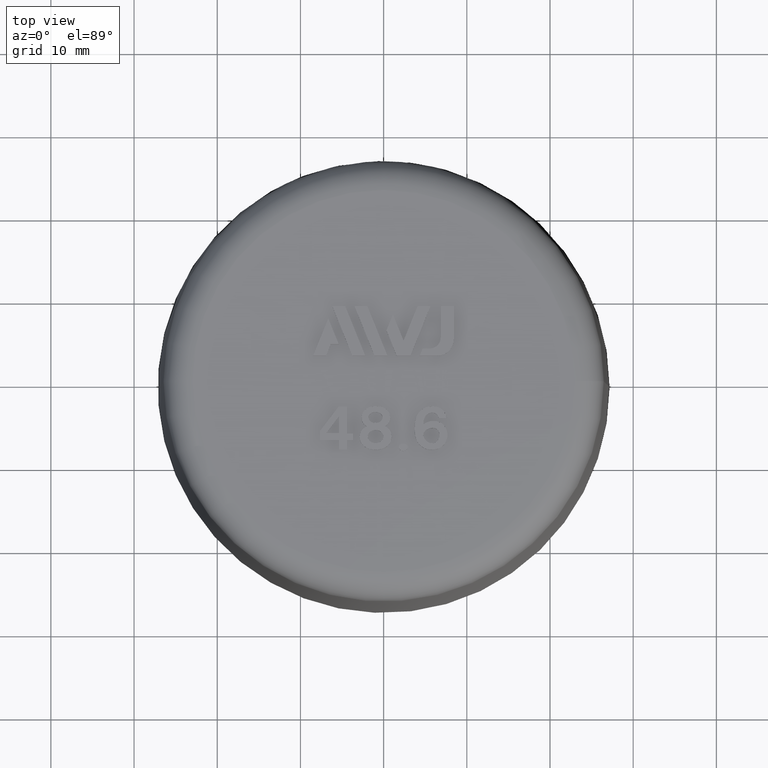
[diagram: clean part render]
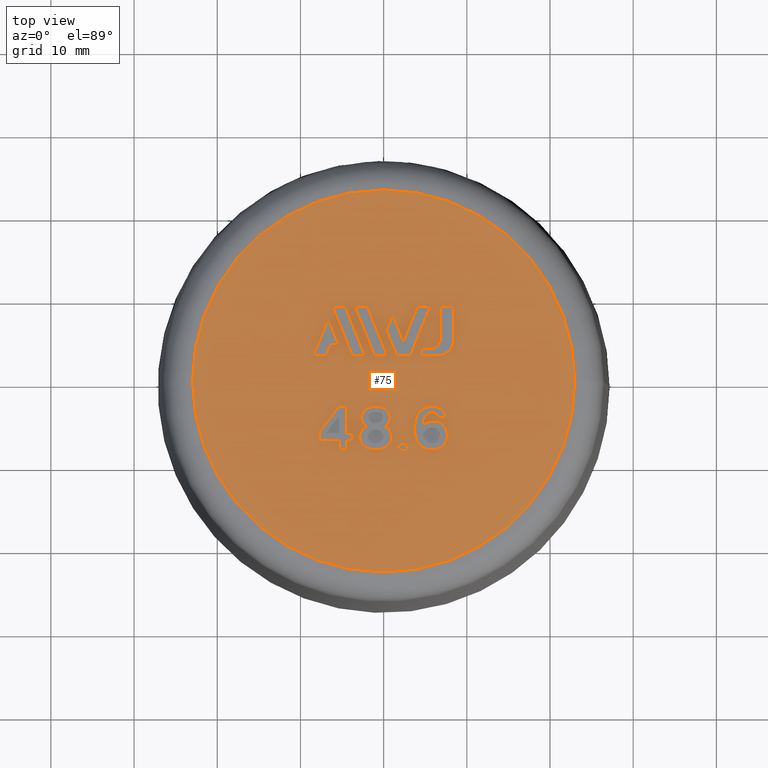
[diagram: same view with one face highlighted and labeled with its STEP entity id]
A machine part, top view. The second image highlights one B-rep face of the part: STEP entity #75.
In plain terms, the highlighted planar face has unit normal (0, 0, -1).
Its self-contained STEP definition (entity closure, byte-faithful):
#75 = ADVANCED_FACE( '', ( #150, #151, #152, #153, #154, #155, #156, #157, #158, #159 ), #160, .F. );
#150 = FACE_BOUND( '', #319, .T. );
#151 = FACE_BOUND( '', #320, .T. );
#152 = FACE_BOUND( '', #321, .T. );
#153 = FACE_BOUND( '', #322, .T. );
#154 = FACE_OUTER_BOUND( '', #323, .T. );
#155 = FACE_BOUND( '', #324, .T. );
#156 = FACE_BOUND( '', #325, .T. );
#157 = FACE_BOUND( '', #326, .T. );
#158 = FACE_BOUND( '', #327, .T. );
#159 = FACE_BOUND( '', #328, .T. );
#160 = PLANE( '', #329 );
#319 = EDGE_LOOP( '', ( #499, #500, #501, #502 ) );
#320 = EDGE_LOOP( '', ( #503, #504, #505, #506, #507, #508, #509 ) );
#321 = EDGE_LOOP( '', ( #510 ) );
#322 = EDGE_LOOP( '', ( #511, #512, #513 ) );
#323 = EDGE_LOOP( '', ( #514 ) );
#324 = EDGE_LOOP( '', ( #515, #516, #517, #518, #519, #520, #521, #522, #523, #524, #525 ) );
#325 = EDGE_LOOP( '', ( #526, #527, #528, #529 ) );
#326 = EDGE_LOOP( '', ( #530, #531, #532, #533, #534, #535, #536, #537 ) );
#327 = EDGE_LOOP( '', ( #538, #539, #540, #541 ) );
#328 = EDGE_LOOP( '', ( #542, #543, #544, #545, #546 ) );
#329 = AXIS2_PLACEMENT_3D( '', #547, #548, #549 );
#499 = ORIENTED_EDGE( '', *, *, #1162, .F. );
#500 = ORIENTED_EDGE( '', *, *, #1163, .F. );
#501 = ORIENTED_EDGE( '', *, *, #1164, .F. );
#502 = ORIENTED_EDGE( '', *, *, #1165, .F. );
#503 = ORIENTED_EDGE( '', *, *, #1166, .F. );
#504 = ORIENTED_EDGE( '', *, *, #1167, .F. );
#505 = ORIENTED_EDGE( '', *, *, #1168, .F. );
#506 = ORIENTED_EDGE( '', *, *, #1169, .F. );
#507 = ORIENTED_EDGE( '', *, *, #1170, .F. );
#508 = ORIENTED_EDGE( '', *, *, #1171, .F. );
#509 = ORIENTED_EDGE( '', *, *, #1172, .F. );
#510 = ORIENTED_EDGE( '', *, *, #1173, .T. );
#511 = ORIENTED_EDGE( '', *, *, #1174, .T. );
#512 = ORIENTED_EDGE( '', *, *, #1175, .T. );
#513 = ORIENTED_EDGE( '', *, *, #1176, .T. );
#514 = ORIENTED_EDGE( '', *, *, #1177, .T. );
#515 = ORIENTED_EDGE( '', *, *, #1178, .T. );
#516 = ORIENTED_EDGE( '', *, *, #1179, .T. );
#517 = ORIENTED_EDGE( '', *, *, #1180, .T. );
#518 = ORIENTED_EDGE( '', *, *, #1181, .T. );
#519 = ORIENTED_EDGE( '', *, *, #1182, .T. );
#520 = ORIENTED_EDGE( '', *, *, #1183, .T. );
#521 = ORIENTED_EDGE( '', *, *, #1184, .T. );
#522 = ORIENTED_EDGE( '', *, *, #1185, .T. );
#523 = ORIENTED_EDGE( '', *, *, #1186, .T. );
#524 = ORIENTED_EDGE( '', *, *, #1187, .T. );
#525 = ORIENTED_EDGE( '', *, *, #1188, .T. );
#526 = ORIENTED_EDGE( '', *, *, #1189, .T. );
#527 = ORIENTED_EDGE( '', *, *, #1190, .T. );
#528 = ORIENTED_EDGE( '', *, *, #1191, .T. );
#529 = ORIENTED_EDGE( '', *, *, #1192, .T. );
#530 = ORIENTED_EDGE( '', *, *, #1193, .F. );
#531 = ORIENTED_EDGE( '', *, *, #1194, .F. );
#532 = ORIENTED_EDGE( '', *, *, #1195, .F. );
#533 = ORIENTED_EDGE( '', *, *, #1196, .F. );
#534 = ORIENTED_EDGE( '', *, *, #1197, .F. );
#535 = ORIENTED_EDGE( '', *, *, #1198, .F. );
#536 = ORIENTED_EDGE( '', *, *, #1199, .F. );
#537 = ORIENTED_EDGE( '', *, *, #1200, .F. );
#538 = ORIENTED_EDGE( '', *, *, #1201, .F. );
#539 = ORIENTED_EDGE( '', *, *, #1202, .F. );
#540 = ORIENTED_EDGE( '', *, *, #1203, .F. );
#541 = ORIENTED_EDGE( '', *, *, #1204, .F. );
#542 = ORIENTED_EDGE( '', *, *, #1205, .F. );
#543 = ORIENTED_EDGE( '', *, *, #1206, .F. );
#544 = ORIENTED_EDGE( '', *, *, #1207, .F. );
#545 = ORIENTED_EDGE( '', *, *, #1208, .F. );
#546 = ORIENTED_EDGE( '', *, *, #1209, .F. );
#547 = CARTESIAN_POINT( '', ( -2.60228850187255E-015, 22.9682014383200, 42.5000000000000 ) );
#548 = DIRECTION( '', ( 6.12303176911189E-017, 0.000000000000000, -1.00000000000000 ) );
#549 = DIRECTION( '', ( -1.00000000000000, 0.000000000000000, -6.12303176911189E-017 ) );
#1162 = EDGE_CURVE( '', #1327, #1328, #1329, .T. );
#1163 = EDGE_CURVE( '', #1330, #1327, #1331, .T. );
#1164 = EDGE_CURVE( '', #1332, #1330, #1333, .T. );
#1165 = EDGE_CURVE( '', #1328, #1332, #1334, .T. );
#1166 = EDGE_CURVE( '', #1335, #1336, #1337, .T. );
#1167 = EDGE_CURVE( '', #1338, #1335, #1339, .T. );
#1168 = EDGE_CURVE( '', #1340, #1338, #1341, .T. );
#1169 = EDGE_CURVE( '', #1342, #1340, #1343, .T. );
#1170 = EDGE_CURVE( '', #1344, #1342, #1345, .T. );
#1171 = EDGE_CURVE( '', #1346, #1344, #1347, .T. );
#1172 = EDGE_CURVE( '', #1336, #1346, #1348, .T. );
#1173 = EDGE_CURVE( '', #1349, #1349, #1350, .T. );
#1174 = EDGE_CURVE( '', #1351, #1352, #1353, .T. );
#1175 = EDGE_CURVE( '', #1352, #1354, #1355, .T. );
#1176 = EDGE_CURVE( '', #1354, #1351, #1356, .T. );
#1177 = EDGE_CURVE( '', #1357, #1357, #1358, .T. );
#1178 = EDGE_CURVE( '', #1359, #1360, #1361, .T. );
#1179 = EDGE_CURVE( '', #1360, #1362, #1363, .T. );
#1180 = EDGE_CURVE( '', #1362, #1364, #1365, .T. );
#1181 = EDGE_CURVE( '', #1364, #1366, #1367, .T. );
#1182 = EDGE_CURVE( '', #1366, #1368, #1369, .T. );
#1183 = EDGE_CURVE( '', #1368, #1370, #1371, .T. );
#1184 = EDGE_CURVE( '', #1370, #1372, #1373, .T. );
#1185 = EDGE_CURVE( '', #1372, #1374, #1375, .T. );
#1186 = EDGE_CURVE( '', #1374, #1376, #1377, .T. );
#1187 = EDGE_CURVE( '', #1376, #1378, #1379, .T. );
#1188 = EDGE_CURVE( '', #1378, #1359, #1380, .T. );
#1189 = EDGE_CURVE( '', #1381, #1382, #1383, .T. );
#1190 = EDGE_CURVE( '', #1382, #1384, #1385, .T. );
#1191 = EDGE_CURVE( '', #1384, #1386, #1387, .T. );
#1192 = EDGE_CURVE( '', #1386, #1381, #1388, .T. );
#1193 = EDGE_CURVE( '', #1389, #1390, #1391, .T. );
#1194 = EDGE_CURVE( '', #1392, #1389, #1393, .T. );
#1195 = EDGE_CURVE( '', #1394, #1392, #1395, .T. );
#1196 = EDGE_CURVE( '', #1396, #1394, #1397, .F. );
#1197 = EDGE_CURVE( '', #1398, #1396, #1399, .T. );
#1198 = EDGE_CURVE( '', #1400, #1398, #1401, .T. );
#1199 = EDGE_CURVE( '', #1402, #1400, #1403, .T. );
#1200 = EDGE_CURVE( '', #1390, #1402, #1404, .T. );
#1201 = EDGE_CURVE( '', #1405, #1406, #1407, .T. );
#1202 = EDGE_CURVE( '', #1408, #1405, #1409, .T. );
#1203 = EDGE_CURVE( '', #1410, #1408, #1411, .T. );
#1204 = EDGE_CURVE( '', #1406, #1410, #1412, .T. );
#1205 = EDGE_CURVE( '', #1413, #1414, #1415, .T. );
#1206 = EDGE_CURVE( '', #1416, #1413, #1417, .T. );
#1207 = EDGE_CURVE( '', #1418, #1416, #1419, .T. );
#1208 = EDGE_CURVE( '', #1420, #1418, #1421, .T. );
#1209 = EDGE_CURVE( '', #1414, #1420, #1422, .T. );
#1327 = VERTEX_POINT( '', #1606 );
#1328 = VERTEX_POINT( '', #1607 );
#1329 = LINE( '', #1608, #1609 );
#1330 = VERTEX_POINT( '', #1610 );
#1331 = LINE( '', #1611, #1612 );
#1332 = VERTEX_POINT( '', #1613 );
#1333 = LINE( '', #1614, #1615 );
#1334 = LINE( '', #1616, #1617 );
#1335 = VERTEX_POINT( '', #1618 );
#1336 = VERTEX_POINT( '', #1619 );
#1337 = LINE( '', #1620, #1621 );
#1338 = VERTEX_POINT( '', #1622 );
#1339 = LINE( '', #1623, #1624 );
#1340 = VERTEX_POINT( '', #1625 );
#1341 = LINE( '', #1626, #1627 );
#1342 = VERTEX_POINT( '', #1628 );
#1343 = LINE( '', #1629, #1630 );
#1344 = VERTEX_POINT( '', #1631 );
#1345 = LINE( '', #1632, #1633 );
#1346 = VERTEX_POINT( '', #1634 );
#1347 = LINE( '', #1635, #1636 );
#1348 = LINE( '', #1637, #1638 );
#1349 = VERTEX_POINT( '', #1639 );
#1350 = B_SPLINE_CURVE_WITH_KNOTS( '', 2, ( #1640, #1641, #1642, #1643, #1644, #1645, #1646, #1647, #1648, #1649, #1650, #1651, #1652, #1653, #1654, #1655, #1656 ), .UNSPECIFIED., .T., .F., ( 3, 2, 2, 2, 2, 2, 2, 2, 3 ), ( 0.000000000000000, 1.00000000000000, 2.00000000000000, 3.00000000000000, 4.00000000000000, 5.00000000000000, 6.00000000000000, 7.00000000000000, 8.00000000000000 ), .UNSPECIFIED. );
#1351 = VERTEX_POINT( '', #1657 );
#1352 = VERTEX_POINT( '', #1658 );
#1353 = B_SPLINE_CURVE_WITH_KNOTS( '', 2, ( #1659, #1660, #1661, #1662, #1663, #1664, #1665, #1666, #1667, #1668, #1669, #1670, #1671, #1672, #1673 ), .UNSPECIFIED., .F., .F., ( 3, 2, 2, 2, 2, 2, 2, 3 ), ( 9.00000000000000, 10.0000000000000, 11.0000000000000, 12.0000000000000, 13.0000000000000, 14.0000000000000, 15.0000000000000, 16.0000000000000 ), .UNSPECIFIED. );
#1354 = VERTEX_POINT( '', #1674 );
#1355 = B_SPLINE_CURVE_WITH_KNOTS( '', 2, ( #1675, #1676, #1677 ), .UNSPECIFIED., .F., .F., ( 3, 3 ), ( 0.000000000000000, 1.00000000000000 ), .UNSPECIFIED. );
#1356 = B_SPLINE_CURVE_WITH_KNOTS( '', 2, ( #1678, #1679, #1680, #1681, #1682, #1683, #1684, #1685, #1686, #1687, #1688, #1689, #1690, #1691, #1692, #1693, #1694 ), .UNSPECIFIED., .F., .F., ( 3, 2, 2, 2, 2, 2, 2, 2, 3 ), ( 1.00000000000000, 2.00000000000000, 3.00000000000000, 4.00000000000000, 5.00000000000000, 6.00000000000000, 7.00000000000000, 8.00000000000000, 9.00000000000000 ), .UNSPECIFIED. );
#1357 = VERTEX_POINT( '', #1695 );
#1358 = CIRCLE( '', #1696, 22.9682014383200 );
#1359 = VERTEX_POINT( '', #1697 );
#1360 = VERTEX_POINT( '', #1698 );
#1361 = B_SPLINE_CURVE_WITH_KNOTS( '', 2, ( #1699, #1700, #1701 ), .UNSPECIFIED., .F., .F., ( 3, 3 ), ( 10.0000000000000, 11.0000000000000 ), .UNSPECIFIED. );
#1362 = VERTEX_POINT( '', #1702 );
#1363 = B_SPLINE_CURVE_WITH_KNOTS( '', 2, ( #1703, #1704, #1705 ), .UNSPECIFIED., .F., .F., ( 3, 3 ), ( 0.000000000000000, 1.00000000000000 ), .UNSPECIFIED. );
#1364 = VERTEX_POINT( '', #1706 );
#1365 = B_SPLINE_CURVE_WITH_KNOTS( '', 2, ( #1707, #1708, #1709 ), .UNSPECIFIED., .F., .F., ( 3, 3 ), ( 1.00000000000000, 2.00000000000000 ), .UNSPECIFIED. );
#1366 = VERTEX_POINT( '', #1710 );
#1367 = B_SPLINE_CURVE_WITH_KNOTS( '', 2, ( #1711, #1712, #1713 ), .UNSPECIFIED., .F., .F., ( 3, 3 ), ( 2.00000000000000, 3.00000000000000 ), .UNSPECIFIED. );
#1368 = VERTEX_POINT( '', #1714 );
#1369 = B_SPLINE_CURVE_WITH_KNOTS( '', 2, ( #1715, #1716, #1717 ), .UNSPECIFIED., .F., .F., ( 3, 3 ), ( 3.00000000000000, 4.00000000000000 ), .UNSPECIFIED. );
#1370 = VERTEX_POINT( '', #1718 );
#1371 = B_SPLINE_CURVE_WITH_KNOTS( '', 2, ( #1719, #1720, #1721 ), .UNSPECIFIED., .F., .F., ( 3, 3 ), ( 4.00000000000000, 5.00000000000000 ), .UNSPECIFIED. );
#1372 = VERTEX_POINT( '', #1722 );
#1373 = B_SPLINE_CURVE_WITH_KNOTS( '', 2, ( #1723, #1724, #1725 ), .UNSPECIFIED., .F., .F., ( 3, 3 ), ( 5.00000000000000, 6.00000000000000 ), .UNSPECIFIED. );
#1374 = VERTEX_POINT( '', #1726 );
#1375 = B_SPLINE_CURVE_WITH_KNOTS( '', 2, ( #1727, #1728, #1729 ), .UNSPECIFIED., .F., .F., ( 3, 3 ), ( 6.00000000000000, 7.00000000000000 ), .UNSPECIFIED. );
#1376 = VERTEX_POINT( '', #1730 );
#1377 = B_SPLINE_CURVE_WITH_KNOTS( '', 2, ( #1731, #1732, #1733 ), .UNSPECIFIED., .F., .F., ( 3, 3 ), ( 7.00000000000000, 8.00000000000000 ), .UNSPECIFIED. );
#1378 = VERTEX_POINT( '', #1734 );
#1379 = B_SPLINE_CURVE_WITH_KNOTS( '', 2, ( #1735, #1736, #1737 ), .UNSPECIFIED., .F., .F., ( 3, 3 ), ( 8.00000000000000, 9.00000000000000 ), .UNSPECIFIED. );
#1380 = B_SPLINE_CURVE_WITH_KNOTS( '', 2, ( #1738, #1739, #1740 ), .UNSPECIFIED., .F., .F., ( 3, 3 ), ( 9.00000000000000, 10.0000000000000 ), .UNSPECIFIED. );
#1381 = VERTEX_POINT( '', #1741 );
#1382 = VERTEX_POINT( '', #1742 );
#1383 = B_SPLINE_CURVE_WITH_KNOTS( '', 2, ( #1743, #1744, #1745, #1746, #1747, #1748, #1749, #1750, #1751, #1752, #1753, #1754, #1755, #1756, #1757, #1758, #1759, #1760, #1761, #1762, #1763, #1764, #1765 ), .UNSPECIFIED., .F., .F., ( 3, 2, 2, 2, 2, 2, 2, 2, 2, 2, 2, 3 ), ( 5.00000000000000, 6.00000000000000, 7.00000000000000, 8.00000000000000, 9.00000000000000, 10.0000000000000, 11.0000000000000, 12.0000000000000, 13.0000000000000, 14.0000000000000, 15.0000000000000, 16.0000000000000 ), .UNSPECIFIED. );
#1384 = VERTEX_POINT( '', #1766 );
#1385 = B_SPLINE_CURVE_WITH_KNOTS( '', 2, ( #1767, #1768, #1769 ), .UNSPECIFIED., .F., .F., ( 3, 3 ), ( 0.000000000000000, 1.00000000000000 ), .UNSPECIFIED. );
#1386 = VERTEX_POINT( '', #1770 );
#1387 = B_SPLINE_CURVE_WITH_KNOTS( '', 2, ( #1771, #1772, #1773 ), .UNSPECIFIED., .F., .F., ( 3, 3 ), ( 1.00000000000000, 2.00000000000000 ), .UNSPECIFIED. );
#1388 = B_SPLINE_CURVE_WITH_KNOTS( '', 2, ( #1774, #1775, #1776, #1777, #1778, #1779, #1780 ), .UNSPECIFIED., .F., .F., ( 3, 2, 2, 3 ), ( 2.00000000000000, 3.00000000000000, 4.00000000000000, 5.00000000000000 ), .UNSPECIFIED. );
#1389 = VERTEX_POINT( '', #1781 );
#1390 = VERTEX_POINT( '', #1782 );
#1391 = LINE( '', #1783, #1784 );
#1392 = VERTEX_POINT( '', #1785 );
#1393 = LINE( '', #1786, #1787 );
#1394 = VERTEX_POINT( '', #1788 );
#1395 = LINE( '', #1789, #1790 );
#1396 = VERTEX_POINT( '', #1791 );
#1397 = CIRCLE( '', #1792, 2.00100000000000 );
#1398 = VERTEX_POINT( '', #1793 );
#1399 = LINE( '', #1794, #1795 );
#1400 = VERTEX_POINT( '', #1796 );
#1401 = LINE( '', #1797, #1798 );
#1402 = VERTEX_POINT( '', #1799 );
#1403 = LINE( '', #1800, #1801 );
#1404 = CIRCLE( '', #1802, 1.33400000000000 );
#1405 = VERTEX_POINT( '', #1803 );
#1406 = VERTEX_POINT( '', #1804 );
#1407 = LINE( '', #1805, #1806 );
#1408 = VERTEX_POINT( '', #1807 );
#1409 = LINE( '', #1808, #1809 );
#1410 = VERTEX_POINT( '', #1810 );
#1411 = LINE( '', #1811, #1812 );
#1412 = LINE( '', #1813, #1814 );
#1413 = VERTEX_POINT( '', #1815 );
#1414 = VERTEX_POINT( '', #1816 );
#1415 = LINE( '', #1817, #1818 );
#1416 = VERTEX_POINT( '', #1819 );
#1417 = LINE( '', #1820, #1821 );
#1418 = VERTEX_POINT( '', #1822 );
#1419 = LINE( '', #1823, #1824 );
#1420 = VERTEX_POINT( '', #1825 );
#1421 = LINE( '', #1826, #1827 );
#1422 = LINE( '', #1828, #1829 );
#1606 = CARTESIAN_POINT( '', ( -2.21126708100000, 3.00305116210031, 42.5000000000000 ) );
#1607 = CARTESIAN_POINT( '', ( -4.63512173600000, 9.00165963410032, 42.5000000000000 ) );
#1608 = CARTESIAN_POINT( '', ( -8.83591610363880, 19.3978773408291, 42.5000000000000 ) );
#1609 = VECTOR( '', #2315, 1000.00000000000 );
#1610 = CARTESIAN_POINT( '', ( -3.76123767900001, 3.00305116210031, 42.5000000000000 ) );
#1611 = CARTESIAN_POINT( '', ( -3.82476099603641E-015, 3.00305116210031, 42.5000000000000 ) );
#1612 = VECTOR( '', #2316, 1000.00000000000 );
#1613 = CARTESIAN_POINT( '', ( -6.18475149700001, 9.00165963410033, 42.5000000000000 ) );
#1614 = CARTESIAN_POINT( '', ( -10.1677652667415, 18.8602954569328, 42.5000000000000 ) );
#1615 = VECTOR( '', #2317, 1000.00000000000 );
#1616 = CARTESIAN_POINT( '', ( -3.45746429359121E-015, 9.00165963410032, 42.5000000000000 ) );
#1617 = VECTOR( '', #2318, 1000.00000000000 );
#1618 = CARTESIAN_POINT( '', ( 5.63160639600000, 9.00165963410032, 42.5000000000000 ) );
#1619 = CARTESIAN_POINT( '', ( 4.08150506599999, 9.00165963410032, 42.5000000000000 ) );
#1620 = CARTESIAN_POINT( '', ( -3.53734127103815E-015, 9.00165963410032, 42.5000000000000 ) );
#1621 = VECTOR( '', #2319, 1000.00000000000 );
#1622 = CARTESIAN_POINT( '', ( 3.20813259799999, 3.00305116210031, 42.5000000000000 ) );
#1623 = CARTESIAN_POINT( '', ( 9.69220340787425, 19.0524931347176, 42.5000000000000 ) );
#1624 = VECTOR( '', #2320, 1000.00000000000 );
#1625 = CARTESIAN_POINT( '', ( 1.56953170700000, 3.00305116210032, 42.5000000000000 ) );
#1626 = CARTESIAN_POINT( '', ( -2.83065653752423E-015, 3.00305116210032, 42.5000000000000 ) );
#1627 = VECTOR( '', #2321, 1000.00000000000 );
#1628 = CARTESIAN_POINT( '', ( 0.334562531000002, 6.05917379310034, 42.5000000000000 ) );
#1629 = CARTESIAN_POINT( '', ( -5.58613675653919, 20.7108618154694, 42.5000000000000 ) );
#1630 = VECTOR( '', #2322, 1000.00000000000 );
#1631 = CARTESIAN_POINT( '', ( 1.10961319600000, 7.97782730710033, 42.5000000000000 ) );
#1632 = CARTESIAN_POINT( '', ( 6.15988679553422, 20.4798812062577, 42.5000000000000 ) );
#1633 = VECTOR( '', #2323, 1000.00000000000 );
#1634 = CARTESIAN_POINT( '', ( 2.38866173400000, 4.81221729310032, 42.5000000000000 ) );
#1635 = CARTESIAN_POINT( '', ( -4.25287871063470, 21.2498475434714, 42.5000000000000 ) );
#1636 = VECTOR( '', #2324, 1000.00000000000 );
#1637 = CARTESIAN_POINT( '', ( 8.36002872533492, 19.5901339698861, 42.5000000000000 ) );
#1638 = VECTOR( '', #2325, 1000.00000000000 );
#1639 = CARTESIAN_POINT( '', ( 2.35500000000000, -7.53474791239786, 42.5000000000000 ) );
#1640 = CARTESIAN_POINT( '', ( 2.35500000000000, -7.53474791239786, 42.5000000000000 ) );
#1641 = CARTESIAN_POINT( '', ( 2.56500000000000, -7.53474791239786, 42.5000000000000 ) );
#1642 = CARTESIAN_POINT( '', ( 2.74500000000000, -7.68474791239786, 42.5000000000000 ) );
#1643 = CARTESIAN_POINT( '', ( 2.89500000000000, -7.80974791239786, 42.5000000000000 ) );
#1644 = CARTESIAN_POINT( '', ( 2.89500000000000, -7.98474791239786, 42.5000000000000 ) );
#1645 = CARTESIAN_POINT( '', ( 2.89500000000000, -8.15974791239786, 42.5000000000000 ) );
#1646 = CARTESIAN_POINT( '', ( 2.74500000000000, -8.28474791239786, 42.5000000000000 ) );
#1647 = CARTESIAN_POINT( '', ( 2.56500000000000, -8.43474791239786, 42.5000000000000 ) );
#1648 = CARTESIAN_POINT( '', ( 2.35500000000000, -8.43474791239786, 42.5000000000000 ) );
#1649 = CARTESIAN_POINT( '', ( 2.14500000000000, -8.43474791239786, 42.5000000000000 ) );
#1650 = CARTESIAN_POINT( '', ( 1.96500000000000, -8.28474791239786, 42.5000000000000 ) );
#1651 = CARTESIAN_POINT( '', ( 1.81500000000000, -8.15974791239786, 42.5000000000000 ) );
#1652 = CARTESIAN_POINT( '', ( 1.81500000000000, -7.98474791239786, 42.5000000000000 ) );
#1653 = CARTESIAN_POINT( '', ( 1.81500000000000, -7.80974791239786, 42.5000000000000 ) );
#1654 = CARTESIAN_POINT( '', ( 1.96500000000000, -7.68474791239786, 42.5000000000000 ) );
#1655 = CARTESIAN_POINT( '', ( 2.14500000000000, -7.53474791239786, 42.5000000000000 ) );
#1656 = CARTESIAN_POINT( '', ( 2.35500000000000, -7.53474791239786, 42.5000000000000 ) );
#1657 = CARTESIAN_POINT( '', ( 0.134999999999997, -5.45974791239786, 42.5000000000000 ) );
#1658 = CARTESIAN_POINT( '', ( -2.74004667555725, -6.13718647212352, 42.5000000000000 ) );
#1659 = CARTESIAN_POINT( '', ( 0.134999999999997, -5.45974791239786, 42.5000000000000 ) );
#1660 = CARTESIAN_POINT( '', ( 0.584999999999996, -5.63474791239786, 42.5000000000000 ) );
#1661 = CARTESIAN_POINT( '', ( 0.808053582956744, -6.06846321259153, 42.5000000000000 ) );
#1662 = CARTESIAN_POINT( '', ( 1.03500000000000, -6.50974791239786, 42.5000000000000 ) );
#1663 = CARTESIAN_POINT( '', ( 0.929423076923073, -7.03763252778248, 42.5000000000000 ) );
#1664 = CARTESIAN_POINT( '', ( 0.824999999999997, -7.55974791239786, 42.5000000000000 ) );
#1665 = CARTESIAN_POINT( '', ( 0.381587202007525, -7.89349948077929, 42.5000000000000 ) );
#1666 = CARTESIAN_POINT( '', ( -0.105000000000004, -8.25974791239786, 42.5000000000000 ) );
#1667 = CARTESIAN_POINT( '', ( -0.825061573827022, -8.28282680899488, 42.5000000000000 ) );
#1668 = CARTESIAN_POINT( '', ( -1.66500000000000, -8.30974791239786, 42.5000000000000 ) );
#1669 = CARTESIAN_POINT( '', ( -2.20161603248609, -7.95463436148795, 42.5000000000000 ) );
#1670 = CARTESIAN_POINT( '', ( -2.68500000000000, -7.63474791239786, 42.5000000000000 ) );
#1671 = CARTESIAN_POINT( '', ( -2.82811926605505, -7.15768369221437, 42.5000000000000 ) );
#1672 = CARTESIAN_POINT( '', ( -2.98500000000000, -6.63474791239786, 42.5000000000000 ) );
#1673 = CARTESIAN_POINT( '', ( -2.74004667555725, -6.13718647212352, 42.5000000000000 ) );
#1674 = CARTESIAN_POINT( '', ( -1.99500000000000, -5.48474791239786, 42.5000000000000 ) );
#1675 = CARTESIAN_POINT( '', ( -2.74004667555725, -6.13718647212352, 42.5000000000000 ) );
#1676 = CARTESIAN_POINT( '', ( -2.50500000000000, -5.65974791239786, 42.5000000000000 ) );
#1677 = CARTESIAN_POINT( '', ( -1.99500000000000, -5.48474791239786, 42.5000000000000 ) );
#1678 = CARTESIAN_POINT( '', ( -1.99500000000000, -5.48474791239786, 42.5000000000000 ) );
#1679 = CARTESIAN_POINT( '', ( -2.38500000000000, -5.28474791239786, 42.5000000000000 ) );
#1680 = CARTESIAN_POINT( '', ( -2.56022407477148, -4.90752941809816, 42.5000000000000 ) );
#1681 = CARTESIAN_POINT( '', ( -2.74500000000000, -4.50974791239786, 42.5000000000000 ) );
#1682 = CARTESIAN_POINT( '', ( -2.57977181292432, -3.98958510123367, 42.5000000000000 ) );
#1683 = CARTESIAN_POINT( '', ( -2.47500000000000, -3.65974791239786, 42.5000000000000 ) );
#1684 = CARTESIAN_POINT( '', ( -2.17500000000000, -3.40974791239786, 42.5000000000000 ) );
#1685 = CARTESIAN_POINT( '', ( -1.75500000000000, -3.05974791239786, 42.5000000000000 ) );
#1686 = CARTESIAN_POINT( '', ( -0.945000000000003, -3.05974791239786, 42.5000000000000 ) );
#1687 = CARTESIAN_POINT( '', ( -0.135000000000004, -3.05974791239786, 42.5000000000000 ) );
#1688 = CARTESIAN_POINT( '', ( 0.284999999999996, -3.40974791239786, 42.5000000000000 ) );
#1689 = CARTESIAN_POINT( '', ( 0.674999999999996, -3.73474791239786, 42.5000000000000 ) );
#1690 = CARTESIAN_POINT( '', ( 0.767603344903753, -4.15917990987341, 42.5000000000000 ) );
#1691 = CARTESIAN_POINT( '', ( 0.854999999999997, -4.55974791239786, 42.5000000000000 ) );
#1692 = CARTESIAN_POINT( '', ( 0.677629821339118, -4.93598768531488, 42.5000000000000 ) );
#1693 = CARTESIAN_POINT( '', ( 0.524999999999997, -5.25974791239786, 42.5000000000000 ) );
#1694 = CARTESIAN_POINT( '', ( 0.134999999999997, -5.45974791239786, 42.5000000000000 ) );
#1695 = CARTESIAN_POINT( '', ( 22.9682014383200, 0.000000000000000, 42.5000000000000 ) );
#1696 = AXIS2_PLACEMENT_3D( '', #2326, #2327, #2328 );
#1697 = CARTESIAN_POINT( '', ( -5.35500000000000, -7.13474791239786, 42.5000000000000 ) );
#1698 = CARTESIAN_POINT( '', ( -7.66500000000000, -7.13474791239786, 42.5000000000000 ) );
#1699 = CARTESIAN_POINT( '', ( -5.35500000000000, -7.13474791239786, 42.5000000000000 ) );
#1700 = CARTESIAN_POINT( '', ( -6.51000000000000, -7.13474791239786, 42.5000000000000 ) );
#1701 = CARTESIAN_POINT( '', ( -7.66500000000000, -7.13474791239786, 42.5000000000000 ) );
#1702 = CARTESIAN_POINT( '', ( -7.66500000000000, -6.05974791239786, 42.5000000000000 ) );
#1703 = CARTESIAN_POINT( '', ( -7.66500000000000, -7.13474791239786, 42.5000000000000 ) );
#1704 = CARTESIAN_POINT( '', ( -7.66500000000000, -6.59724791239786, 42.5000000000000 ) );
#1705 = CARTESIAN_POINT( '', ( -7.66500000000000, -6.05974791239786, 42.5000000000000 ) );
#1706 = CARTESIAN_POINT( '', ( -5.41500000000000, -3.10974791239786, 42.5000000000000 ) );
#1707 = CARTESIAN_POINT( '', ( -7.66500000000000, -6.05974791239786, 42.5000000000000 ) );
#1708 = CARTESIAN_POINT( '', ( -6.54000000000000, -4.58474791239786, 42.5000000000000 ) );
#1709 = CARTESIAN_POINT( '', ( -5.41500000000000, -3.10974791239786, 42.5000000000000 ) );
#1710 = CARTESIAN_POINT( '', ( -4.39500000000000, -3.10974791239786, 42.5000000000000 ) );
#1711 = CARTESIAN_POINT( '', ( -5.41500000000000, -3.10974791239786, 42.5000000000000 ) );
#1712 = CARTESIAN_POINT( '', ( -4.90500000000000, -3.10974791239786, 42.5000000000000 ) );
#1713 = CARTESIAN_POINT( '', ( -4.39500000000000, -3.10974791239786, 42.5000000000000 ) );
#1714 = CARTESIAN_POINT( '', ( -4.39500000000000, -6.33474791239786, 42.5000000000000 ) );
#1715 = CARTESIAN_POINT( '', ( -4.39500000000000, -3.10974791239786, 42.5000000000000 ) );
#1716 = CARTESIAN_POINT( '', ( -4.39500000000000, -4.72224791239786, 42.5000000000000 ) );
#1717 = CARTESIAN_POINT( '', ( -4.39500000000000, -6.33474791239786, 42.5000000000000 ) );
#1718 = CARTESIAN_POINT( '', ( -3.70500000000000, -6.33474791239786, 42.5000000000000 ) );
#1719 = CARTESIAN_POINT( '', ( -4.39500000000000, -6.33474791239786, 42.5000000000000 ) );
#1720 = CARTESIAN_POINT( '', ( -4.05000000000000, -6.33474791239786, 42.5000000000000 ) );
#1721 = CARTESIAN_POINT( '', ( -3.70500000000000, -6.33474791239786, 42.5000000000000 ) );
#1722 = CARTESIAN_POINT( '', ( -3.70500000000000, -7.13474791239786, 42.5000000000000 ) );
#1723 = CARTESIAN_POINT( '', ( -3.70500000000000, -6.33474791239786, 42.5000000000000 ) );
#1724 = CARTESIAN_POINT( '', ( -3.70500000000000, -6.73474791239786, 42.5000000000000 ) );
#1725 = CARTESIAN_POINT( '', ( -3.70500000000000, -7.13474791239786, 42.5000000000000 ) );
#1726 = CARTESIAN_POINT( '', ( -4.39500000000000, -7.13474791239786, 42.5000000000000 ) );
#1727 = CARTESIAN_POINT( '', ( -3.70500000000000, -7.13474791239786, 42.5000000000000 ) );
#1728 = CARTESIAN_POINT( '', ( -4.05000000000000, -7.13474791239786, 42.5000000000000 ) );
#1729 = CARTESIAN_POINT( '', ( -4.39500000000000, -7.13474791239786, 42.5000000000000 ) );
#1730 = CARTESIAN_POINT( '', ( -4.39500000000000, -8.25974791239786, 42.5000000000000 ) );
#1731 = CARTESIAN_POINT( '', ( -4.39500000000000, -7.13474791239786, 42.5000000000000 ) );
#1732 = CARTESIAN_POINT( '', ( -4.39500000000000, -7.69724791239786, 42.5000000000000 ) );
#1733 = CARTESIAN_POINT( '', ( -4.39500000000000, -8.25974791239786, 42.5000000000000 ) );
#1734 = CARTESIAN_POINT( '', ( -5.35500000000000, -8.25974791239786, 42.5000000000000 ) );
#1735 = CARTESIAN_POINT( '', ( -4.39500000000000, -8.25974791239786, 42.5000000000000 ) );
#1736 = CARTESIAN_POINT( '', ( -4.87500000000000, -8.25974791239786, 42.5000000000000 ) );
#1737 = CARTESIAN_POINT( '', ( -5.35500000000000, -8.25974791239786, 42.5000000000000 ) );
#1738 = CARTESIAN_POINT( '', ( -5.35500000000000, -8.25974791239786, 42.5000000000000 ) );
#1739 = CARTESIAN_POINT( '', ( -5.35500000000000, -7.69724791239786, 42.5000000000000 ) );
#1740 = CARTESIAN_POINT( '', ( -5.35500000000000, -7.13474791239786, 42.5000000000000 ) );
#1741 = CARTESIAN_POINT( '', ( 4.75500000000000, -5.25974791239786, 42.5000000000000 ) );
#1742 = CARTESIAN_POINT( '', ( 6.91875719048524, -3.37977287396224, 42.5000000000000 ) );
#1743 = CARTESIAN_POINT( '', ( 4.75500000000000, -5.25974791239786, 42.5000000000000 ) );
#1744 = CARTESIAN_POINT( '', ( 5.83500000000000, -4.48474791239786, 42.5000000000000 ) );
#1745 = CARTESIAN_POINT( '', ( 6.87600289192759, -5.05128009848091, 42.5000000000000 ) );
#1746 = CARTESIAN_POINT( '', ( 7.30500000000000, -5.28474791239786, 42.5000000000000 ) );
#1747 = CARTESIAN_POINT( '', ( 7.51649630325079, -5.78411418396223, 42.5000000000000 ) );
#1748 = CARTESIAN_POINT( '', ( 7.66500000000000, -6.13474791239786, 42.5000000000000 ) );
#1749 = CARTESIAN_POINT( '', ( 7.66500000000000, -6.60974791239786, 42.5000000000000 ) );
#1750 = CARTESIAN_POINT( '', ( 7.66500000000000, -7.18474791239786, 42.5000000000000 ) );
#1751 = CARTESIAN_POINT( '', ( 7.27448891182025, -7.65932735983853, 42.5000000000000 ) );
#1752 = CARTESIAN_POINT( '', ( 6.94500000000000, -8.05974791239786, 42.5000000000000 ) );
#1753 = CARTESIAN_POINT( '', ( 6.40405378083299, -8.20625418008892, 42.5000000000000 ) );
#1754 = CARTESIAN_POINT( '', ( 5.74500000000000, -8.38474791239786, 42.5000000000000 ) );
#1755 = CARTESIAN_POINT( '', ( 5.11800000000000, -8.17574791239786, 42.5000000000000 ) );
#1756 = CARTESIAN_POINT( '', ( 4.39500000000000, -7.93474791239786, 42.5000000000000 ) );
#1757 = CARTESIAN_POINT( '', ( 4.03546970408642, -7.30947783254817, 42.5000000000000 ) );
#1758 = CARTESIAN_POINT( '', ( 3.70500000000000, -6.73474791239786, 42.5000000000000 ) );
#1759 = CARTESIAN_POINT( '', ( 3.72000291992905, -5.65953865081547, 42.5000000000000 ) );
#1760 = CARTESIAN_POINT( '', ( 3.73500000000000, -4.58474791239786, 42.5000000000000 ) );
#1761 = CARTESIAN_POINT( '', ( 4.10768005758763, -3.99273011258417, 42.5000000000000 ) );
#1762 = CARTESIAN_POINT( '', ( 4.69500000000000, -3.05974791239786, 42.5000000000000 ) );
#1763 = CARTESIAN_POINT( '', ( 5.86500000000000, -3.05974791239786, 42.5000000000000 ) );
#1764 = CARTESIAN_POINT( '', ( 6.49500000000000, -3.05974791239786, 42.5000000000000 ) );
#1765 = CARTESIAN_POINT( '', ( 6.91875719048524, -3.37977287396224, 42.5000000000000 ) );
#1766 = CARTESIAN_POINT( '', ( 7.57500000000000, -4.45974791239786, 42.5000000000000 ) );
#1767 = CARTESIAN_POINT( '', ( 6.91875719048524, -3.37977287396224, 42.5000000000000 ) );
#1768 = CARTESIAN_POINT( '', ( 7.45500000000000, -3.78474791239786, 42.5000000000000 ) );
#1769 = CARTESIAN_POINT( '', ( 7.57500000000000, -4.45974791239786, 42.5000000000000 ) );
#1770 = CARTESIAN_POINT( '', ( 6.61500000000000, -4.45974791239786, 42.5000000000000 ) );
#1771 = CARTESIAN_POINT( '', ( 7.57500000000000, -4.45974791239786, 42.5000000000000 ) );
#1772 = CARTESIAN_POINT( '', ( 7.09500000000000, -4.45974791239786, 42.5000000000000 ) );
#1773 = CARTESIAN_POINT( '', ( 6.61500000000000, -4.45974791239786, 42.5000000000000 ) );
#1774 = CARTESIAN_POINT( '', ( 6.61500000000000, -4.45974791239786, 42.5000000000000 ) );
#1775 = CARTESIAN_POINT( '', ( 6.46500000000000, -3.83474791239786, 42.5000000000000 ) );
#1776 = CARTESIAN_POINT( '', ( 5.83500000000000, -3.83474791239786, 42.5000000000000 ) );
#1777 = CARTESIAN_POINT( '', ( 5.35500000000000, -3.83474791239786, 42.5000000000000 ) );
#1778 = CARTESIAN_POINT( '', ( 5.02560507482108, -4.26021635742063, 42.5000000000000 ) );
#1779 = CARTESIAN_POINT( '', ( 4.75500000000000, -4.60974791239786, 42.5000000000000 ) );
#1780 = CARTESIAN_POINT( '', ( 4.75500000000000, -5.25974791239786, 42.5000000000000 ) );
#1781 = CARTESIAN_POINT( '', ( 6.86196526799999, 9.00165963410032, 42.5000000000000 ) );
#1782 = CARTESIAN_POINT( '', ( 6.86196526800000, 5.20936243310032, 42.5000000000000 ) );
#1783 = CARTESIAN_POINT( '', ( 6.86196526799999, 22.9682014383200, 42.5000000000000 ) );
#1784 = VECTOR( '', #2329, 1000.00000000000 );
#1785 = CARTESIAN_POINT( '', ( 8.42964605000000, 9.00165963410032, 42.5000000000000 ) );
#1786 = CARTESIAN_POINT( '', ( -3.53734127103815E-015, 9.00165963410032, 42.5000000000000 ) );
#1787 = VECTOR( '', #2330, 1000.00000000000 );
#1788 = CARTESIAN_POINT( '', ( 8.42964605000000, 5.00405116210032, 42.5000000000000 ) );
#1789 = CARTESIAN_POINT( '', ( 8.42964605000000, 22.9682014383200, 42.5000000000000 ) );
#1790 = VECTOR( '', #2331, 1000.00000000000 );
#1791 = CARTESIAN_POINT( '', ( 6.42864605000000, 3.00305116210031, 42.5000000000000 ) );
#1792 = AXIS2_PLACEMENT_3D( '', #2332, #2333, #2334 );
#1793 = CARTESIAN_POINT( '', ( 4.32347198900000, 3.00305116210031, 42.5000000000000 ) );
#1794 = CARTESIAN_POINT( '', ( -3.93894501386225E-015, 3.00305116210031, 42.5000000000000 ) );
#1795 = VECTOR( '', #2335, 1000.00000000000 );
#1796 = CARTESIAN_POINT( '', ( 4.67590811900000, 3.87536243310032, 42.5000000000000 ) );
#1797 = CARTESIAN_POINT( '', ( 10.6512325082501, 18.6648302797261, 42.5000000000000 ) );
#1798 = VECTOR( '', #2336, 1000.00000000000 );
#1799 = CARTESIAN_POINT( '', ( 5.52796526800000, 3.87536243310033, 42.5000000000000 ) );
#1800 = CARTESIAN_POINT( '', ( -3.88054422424971E-015, 3.87536243310033, 42.5000000000000 ) );
#1801 = VECTOR( '', #2337, 1000.00000000000 );
#1802 = AXIS2_PLACEMENT_3D( '', #2338, #2339, #2340 );
#1803 = CARTESIAN_POINT( '', ( 0.454192983000000, 3.00305116210031, 42.5000000000000 ) );
#1804 = CARTESIAN_POINT( '', ( -1.96966167200000, 9.00165963410032, 42.5000000000000 ) );
#1805 = CARTESIAN_POINT( '', ( -6.54456918099979, 20.3237407190747, 42.5000000000000 ) );
#1806 = VECTOR( '', #2341, 1000.00000000000 );
#1807 = CARTESIAN_POINT( '', ( -1.09588833700001, 3.00305116210031, 42.5000000000000 ) );
#1808 = CARTESIAN_POINT( '', ( -3.82476099603641E-015, 3.00305116210031, 42.5000000000000 ) );
#1809 = VECTOR( '', #2342, 1000.00000000000 );
#1810 = CARTESIAN_POINT( '', ( -3.51974232500000, 9.00165963410032, 42.5000000000000 ) );
#1811 = CARTESIAN_POINT( '', ( -7.87708608700729, 19.7853121707619, 42.5000000000000 ) );
#1812 = VECTOR( '', #2343, 1000.00000000000 );
#1813 = CARTESIAN_POINT( '', ( -3.45746429359121E-015, 9.00165963410032, 42.5000000000000 ) );
#1814 = VECTOR( '', #2344, 1000.00000000000 );
#1815 = CARTESIAN_POINT( '', ( -8.47575576000001, 3.00305116210031, 42.5000000000000 ) );
#1816 = CARTESIAN_POINT( '', ( -6.92612599899999, 3.00305116210031, 42.5000000000000 ) );
#1817 = CARTESIAN_POINT( '', ( -3.93894501386225E-015, 3.00305116210031, 42.5000000000000 ) );
#1818 = VECTOR( '', #2345, 1000.00000000000 );
#1819 = CARTESIAN_POINT( '', ( -6.65884242400001, 7.50064950410032, 42.5000000000000 ) );
#1820 = CARTESIAN_POINT( '', ( -0.352779799019903, 23.1107153474712, 42.5000000000000 ) );
#1821 = VECTOR( '', #2346, 1000.00000000000 );
#1822 = CARTESIAN_POINT( '', ( -5.40203366700000, 4.38850087410032, 42.5000000000000 ) );
#1823 = CARTESIAN_POINT( '', ( -11.0956949967301, 18.4873207687834, 42.5000000000000 ) );
#1824 = VECTOR( '', #2347, 1000.00000000000 );
#1825 = CARTESIAN_POINT( '', ( -6.36596072299999, 4.38850087410032, 42.5000000000000 ) );
#1826 = CARTESIAN_POINT( '', ( -2.81480930247484E-015, 4.38850087410032, 42.5000000000000 ) );
#1827 = VECTOR( '', #2348, 1000.00000000000 );
#1828 = CARTESIAN_POINT( '', ( 0.985141348665318, 22.5698889115683, 42.5000000000000 ) );
#1829 = VECTOR( '', #2349, 1000.00000000000 );
#2315 = DIRECTION( '', ( -0.374641075834904, 0.927169922019295, -2.29393920935137E-017 ) );
#2316 = DIRECTION( '', ( 1.00000000000000, -6.12303176911189E-017, 6.12303176911189E-017 ) );
#2317 = DIRECTION( '', ( 0.374595787424495, -0.927188220397468, 2.29366190697566E-017 ) );
#2318 = DIRECTION( '', ( -1.00000000000000, 6.12303176911189E-017, -6.12303176911189E-017 ) );
#2319 = DIRECTION( '', ( -1.00000000000000, 6.69494841509797E-017, -6.12303176911189E-017 ) );
#2320 = DIRECTION( '', ( 0.374590469627020, 0.927190368837278, 2.29362934593279E-017 ) );
#2321 = DIRECTION( '', ( 1.00000000000000, -1.14383329197221E-017, 6.12303176911189E-017 ) );
#2322 = DIRECTION( '', ( 0.374662791989133, -0.927161146888127, 2.29407217805362E-017 ) );
#2323 = DIRECTION( '', ( -0.374550228315492, -0.927206625552694, -2.29338294710387E-017 ) );
#2324 = DIRECTION( '', ( -0.374621466961798, 0.927177845125405, -2.29381914359839E-017 ) );
#2325 = DIRECTION( '', ( -0.374644407000049, -0.927168575990139, -2.29395960618138E-017 ) );
#2326 = CARTESIAN_POINT( '', ( -2.60228850187255E-015, 0.000000000000000, 42.5000000000000 ) );
#2327 = DIRECTION( '', ( -6.12303176911189E-017, 0.000000000000000, 1.00000000000000 ) );
#2328 = DIRECTION( '', ( 1.00000000000000, 0.000000000000000, 6.12303176911189E-017 ) );
#2329 = DIRECTION( '', ( -6.69494841509799E-017, -1.00000000000000, -4.09933818382103E-033 ) );
#2330 = DIRECTION( '', ( -1.00000000000000, 6.69494841509797E-017, -6.12303176911189E-017 ) );
#2331 = DIRECTION( '', ( 6.69494841509797E-017, 1.00000000000000, 4.09933818382101E-033 ) );
#2332 = CARTESIAN_POINT( '', ( 6.42864605000000, 5.00405116210031, 42.5000000000000 ) );
#2333 = DIRECTION( '', ( 6.12303176911189E-017, 0.000000000000000, -1.00000000000000 ) );
#2334 = DIRECTION( '', ( -1.00000000000000, 0.000000000000000, -6.12303176911189E-017 ) );
#2335 = DIRECTION( '', ( 1.00000000000000, -6.69494841509797E-017, 6.12303176911189E-017 ) );
#2336 = DIRECTION( '', ( -0.374606136016172, -0.927184039368147, -2.29372527173127E-017 ) );
#2337 = DIRECTION( '', ( -1.00000000000000, 6.69494841509799E-017, -6.12303176911189E-017 ) );
#2338 = CARTESIAN_POINT( '', ( 5.52796526800000, 5.20936243310033, 42.5000000000000 ) );
#2339 = DIRECTION( '', ( 6.12303176911189E-017, 0.000000000000000, -1.00000000000000 ) );
#2340 = DIRECTION( '', ( -1.00000000000000, 0.000000000000000, -6.12303176911189E-017 ) );
#2341 = DIRECTION( '', ( -0.374641075834904, 0.927169922019295, -2.29393920935137E-017 ) );
#2342 = DIRECTION( '', ( 1.00000000000000, -6.12303176911187E-017, 6.12303176911189E-017 ) );
#2343 = DIRECTION( '', ( 0.374640987210495, -0.927169957829709, 2.29393866670130E-017 ) );
#2344 = DIRECTION( '', ( -1.00000000000000, 6.12303176911187E-017, -6.12303176911189E-017 ) );
#2345 = DIRECTION( '', ( 1.00000000000000, -6.69494841509797E-017, 6.12303176911189E-017 ) );
#2346 = DIRECTION( '', ( -0.374565060835224, -0.927200633736574, -2.29347376709340E-017 ) );
#2347 = DIRECTION( '', ( -0.374457798873769, 0.927243957576760, -2.29281699869579E-017 ) );
#2348 = DIRECTION( '', ( 1.00000000000000, -1.14383329197221E-017, 6.12303176911189E-017 ) );
#2349 = DIRECTION( '', ( 0.374840859640758, 0.927089170438194, 2.29516249194157E-017 ) );